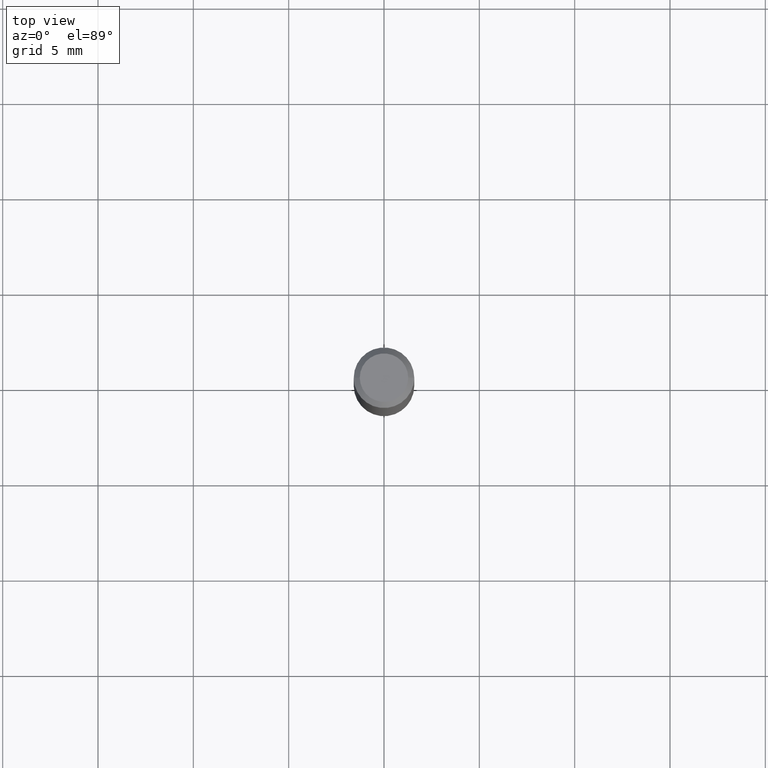
[diagram: clean part render]
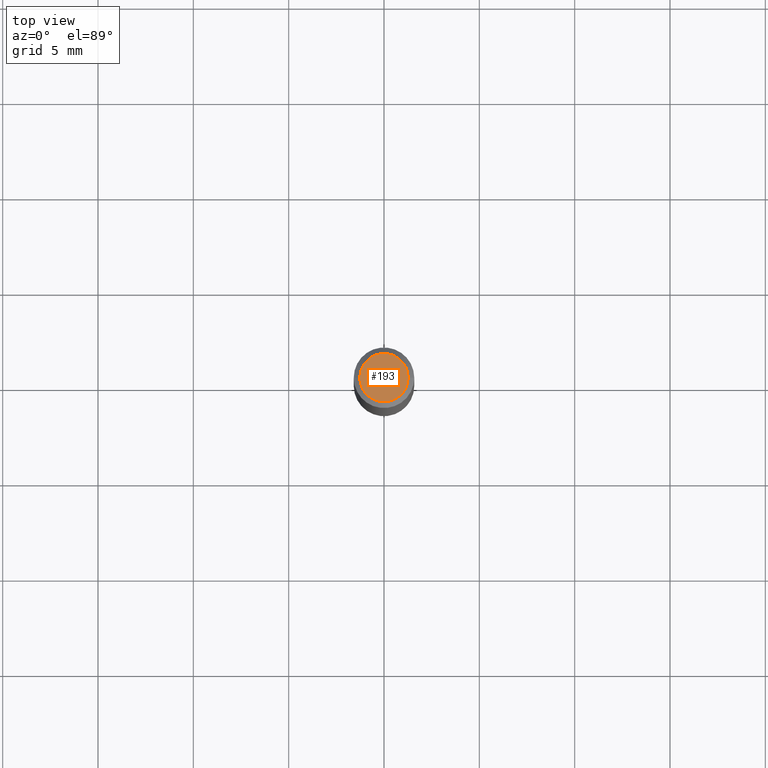
[diagram: same view with one face highlighted and labeled with its STEP entity id]
A machine part, top view. The second image highlights one B-rep face of the part: STEP entity #193.
In plain terms, the highlighted planar face has unit normal (0, -0, -1).
Its self-contained STEP definition (entity closure, byte-faithful):
#4 = PLANE ( 'NONE',  #352 ) ;
#22 = DIRECTION ( 'NONE',  ( -2.445468806185136597E-29, 3.491481338843145583E-15, 1.000000000000000000 ) ) ;
#95 = VERTEX_POINT ( 'NONE', #221 ) ;
#135 = CIRCLE ( 'NONE', #382, 0.04999999999999999584 ) ;
#142 = CARTESIAN_POINT ( 'NONE',  ( 3.893286209682126177E-47, -5.558580879666067980E-33, -1.592040838891559689E-18 ) ) ;
#169 = DIRECTION ( 'NONE',  ( 2.438088387897960049E-29, -3.491481338843145188E-15, -1.000000000000000000 ) ) ;
#193 = ADVANCED_FACE ( 'NONE', ( #336 ), #4, .F. ) ;
#221 = CARTESIAN_POINT ( 'NONE',  ( 0.04999999999999999584, -4.077247707424184705E-16, -1.592040838888913461E-18 ) ) ;
#223 = AXIS2_PLACEMENT_3D ( 'NONE', #250, #22, #324 ) ;
#248 = DIRECTION ( 'NONE',  ( 1.000000000000000000, -6.982962677686265922E-15, 4.875957971899673662E-29 ) ) ;
#250 = CARTESIAN_POINT ( 'NONE',  ( 3.893286209682126177E-47, -5.558580879666067980E-33, -1.592040838891559689E-18 ) ) ;
#287 = DIRECTION ( 'NONE',  ( -2.445468806185136597E-29, 3.491481338843145583E-15, 1.000000000000000000 ) ) ;
#324 = DIRECTION ( 'NONE',  ( 1.000000000000000000, -6.982962677686265922E-15, 4.875957971899673662E-29 ) ) ;
#336 = FACE_OUTER_BOUND ( 'NONE', #421, .T. ) ;
#348 = ORIENTED_EDGE ( 'NONE', *, *, #423, .T. ) ;
#352 = AXIS2_PLACEMENT_3D ( 'NONE', #448, #169, #376 ) ;
#376 = DIRECTION ( 'NONE',  ( -1.000000000000000000, 6.982962677686265922E-15, -4.876176775795935793E-29 ) ) ;
#382 = AXIS2_PLACEMENT_3D ( 'NONE', #142, #287, #248 ) ;
#404 = CARTESIAN_POINT ( 'NONE',  ( -0.04999999999999999584, 3.709698922520826725E-16, -1.592040838894077649E-18 ) ) ;
#421 = EDGE_LOOP ( 'NONE', ( #465, #348 ) ) ;
#423 = EDGE_CURVE ( 'NONE', #95, #467, #455, .T. ) ;
#448 = CARTESIAN_POINT ( 'NONE',  ( 1.946643104841063088E-47, -2.779290439833033990E-33, -7.960204194457798443E-19 ) ) ;
#455 = CIRCLE ( 'NONE', #223, 0.04999999999999999584 ) ;
#458 = EDGE_CURVE ( 'NONE', #467, #95, #135, .T. ) ;
#465 = ORIENTED_EDGE ( 'NONE', *, *, #458, .T. ) ;
#467 = VERTEX_POINT ( 'NONE', #404 ) ;